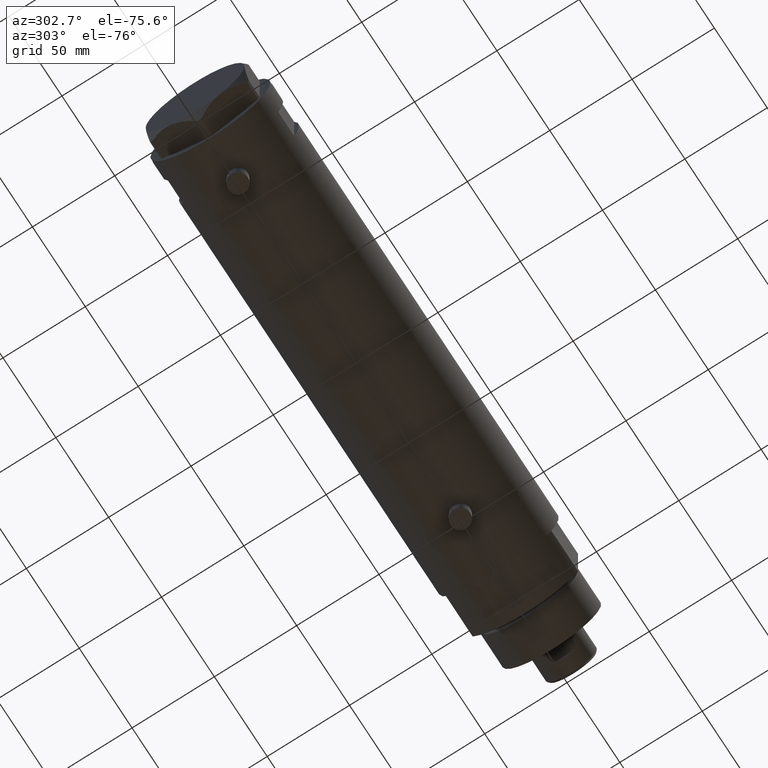
[diagram: clean part render]
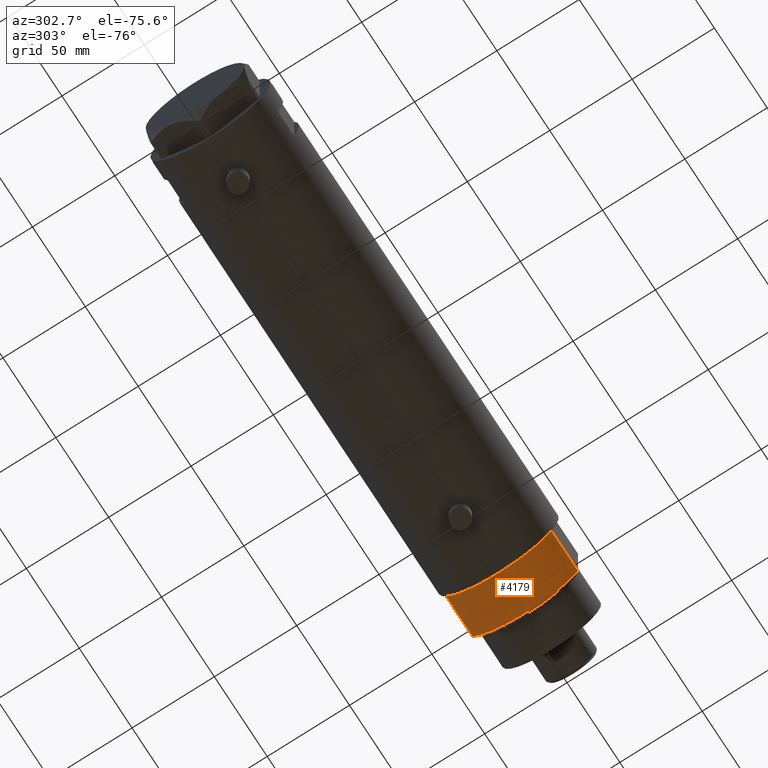
[diagram: same view with one face highlighted and labeled with its STEP entity id]
A machine part, auxiliary view. The second image highlights one B-rep face of the part: STEP entity #4179.
In plain terms, the highlighted cylindrical surface (partial cylindrical patch) has radius 36.5 mm, axis along (-1, -0, 0).
Its self-contained STEP definition (entity closure, byte-faithful):
#63 = DIRECTION ( 'NONE',  ( 0.000000000000000000, 0.000000000000000000, 1.000000000000000000 ) ) ;
#182 = LINE ( 'NONE', #2131, #1629 ) ;
#223 = CARTESIAN_POINT ( 'NONE',  ( 17.55704986607943141, -32.00000000000000000, 0.000000000000000000 ) ) ;
#785 = DIRECTION ( 'NONE',  ( 1.000000000000000000, 0.000000000000000000, 0.000000000000000000 ) ) ;
#910 = ORIENTED_EDGE ( 'NONE', *, *, #3022, .T. ) ;
#1019 = CARTESIAN_POINT ( 'NONE',  ( 17.55704986607943141, -32.00000000000000000, 0.000000000000000000 ) ) ;
#1123 = DIRECTION ( 'NONE',  ( 0.000000000000000000, 0.000000000000000000, 1.000000000000000000 ) ) ;
#1148 = CYLINDRICAL_SURFACE ( 'NONE', #2498, 36.50000000000000000 ) ;
#1190 = DIRECTION ( 'NONE',  ( -1.000000000000000000, 0.000000000000000000, 0.000000000000000000 ) ) ;
#1313 = CARTESIAN_POINT ( 'NONE',  ( 17.55704986607943496, 32.00000000000000000, 25.19999999999999929 ) ) ;
#1442 = DIRECTION ( 'NONE',  ( 1.000000000000000000, 0.000000000000000000, 0.000000000000000000 ) ) ;
#1483 = ORIENTED_EDGE ( 'NONE', *, *, #3305, .F. ) ;
#1485 = VERTEX_POINT ( 'NONE', #1313 ) ;
#1629 = VECTOR ( 'NONE', #3957, 1000.000000000000000 ) ;
#1879 = ORIENTED_EDGE ( 'NONE', *, *, #4347, .F. ) ;
#1915 = AXIS2_PLACEMENT_3D ( 'NONE', #2826, #1123, #785 ) ;
#2131 = CARTESIAN_POINT ( 'NONE',  ( 17.55704986607943141, 32.00000000000000000, 0.000000000000000000 ) ) ;
#2158 = VERTEX_POINT ( 'NONE', #3725 ) ;
#2165 = CARTESIAN_POINT ( 'NONE',  ( 0.000000000000000000, 0.000000000000000000, 25.19999999999999929 ) ) ;
#2225 = VERTEX_POINT ( 'NONE', #3152 ) ;
#2498 = AXIS2_PLACEMENT_3D ( 'NONE', #2165, #3224, #1190 ) ;
#2529 = FACE_OUTER_BOUND ( 'NONE', #3226, .T. ) ;
#2546 = VERTEX_POINT ( 'NONE', #1019 ) ;
#2634 = CIRCLE ( 'NONE', #3594, 36.50000000000000000 ) ;
#2703 = CIRCLE ( 'NONE', #1915, 36.50000000000000000 ) ;
#2826 = CARTESIAN_POINT ( 'NONE',  ( 0.000000000000000000, 0.000000000000000000, 25.19999999999999929 ) ) ;
#3022 = EDGE_CURVE ( 'NONE', #2225, #1485, #182, .T. ) ;
#3056 = LINE ( 'NONE', #223, #4261 ) ;
#3152 = CARTESIAN_POINT ( 'NONE',  ( 17.55704986607943496, 32.00000000000000000, 0.000000000000000000 ) ) ;
#3224 = DIRECTION ( 'NONE',  ( -0.000000000000000000, -0.000000000000000000, -1.000000000000000000 ) ) ;
#3226 = EDGE_LOOP ( 'NONE', ( #1483, #1879, #3989, #910 ) ) ;
#3271 = EDGE_CURVE ( 'NONE', #2546, #2225, #2634, .T. ) ;
#3305 = EDGE_CURVE ( 'NONE', #2158, #1485, #2703, .T. ) ;
#3564 = CARTESIAN_POINT ( 'NONE',  ( 0.000000000000000000, 0.000000000000000000, 0.000000000000000000 ) ) ;
#3594 = AXIS2_PLACEMENT_3D ( 'NONE', #3564, #63, #1442 ) ;
#3677 = DIRECTION ( 'NONE',  ( -0.000000000000000000, -0.000000000000000000, 1.000000000000000000 ) ) ;
#3725 = CARTESIAN_POINT ( 'NONE',  ( 17.55704986607943496, -32.00000000000000000, 25.19999999999999929 ) ) ;
#3957 = DIRECTION ( 'NONE',  ( -0.000000000000000000, -0.000000000000000000, 1.000000000000000000 ) ) ;
#3989 = ORIENTED_EDGE ( 'NONE', *, *, #3271, .T. ) ;
#4179 = ADVANCED_FACE ( 'NONE', ( #2529 ), #1148, .T. ) ;
#4261 = VECTOR ( 'NONE', #3677, 1000.000000000000000 ) ;
#4347 = EDGE_CURVE ( 'NONE', #2546, #2158, #3056, .T. ) ;